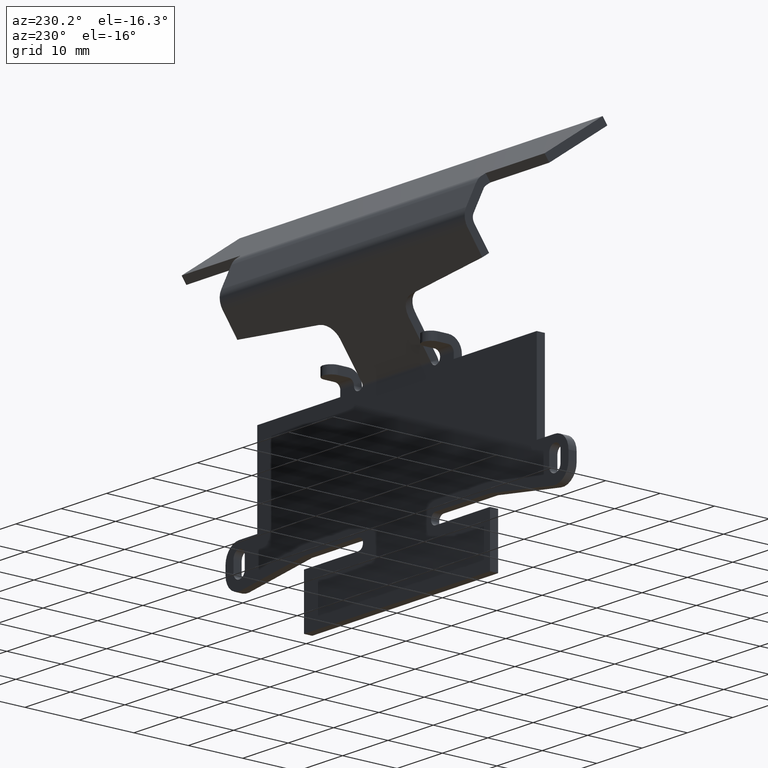
[diagram: clean part render]
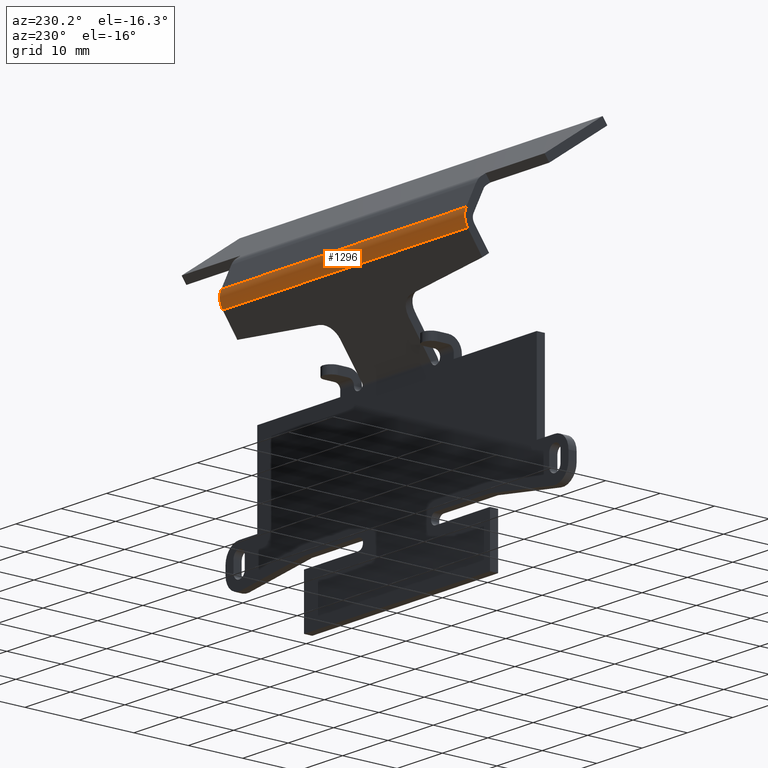
[diagram: same view with one face highlighted and labeled with its STEP entity id]
A machine part, auxiliary view. The second image highlights one B-rep face of the part: STEP entity #1296.
In plain terms, the highlighted cylindrical surface (edge-blend (fillet) strip) has radius 3 mm, axis along (-1, 0, 0).
Its self-contained STEP definition (entity closure, byte-faithful):
#29 = DIRECTION ( 'NONE',  ( -1.000000000000000000, 0.0000000000000000000, 0.0000000000000000000 ) ) ;
#56 = EDGE_LOOP ( 'NONE', ( #2111, #1553, #1340, #2960 ) ) ;
#241 = EDGE_CURVE ( 'NONE', #2071, #917, #930, .T. ) ;
#296 = CARTESIAN_POINT ( 'NONE',  ( -27.00000000000000400, 9.791075290276825900, -22.23260362036016600 ) ) ;
#356 = CIRCLE ( 'NONE', #2920, 3.000000000000001300 ) ;
#612 = CARTESIAN_POINT ( 'NONE',  ( -27.00000000000000700, 9.529608062033847900, -25.22118771463541300 ) ) ;
#673 = VERTEX_POINT ( 'NONE', #1943 ) ;
#679 = EDGE_CURVE ( 'NONE', #917, #2728, #356, .T. ) ;
#850 = DIRECTION ( 'NONE',  ( -1.000000000000000000, 0.0000000000000000000, 0.0000000000000000000 ) ) ;
#917 = VERTEX_POINT ( 'NONE', #296 ) ;
#930 = LINE ( 'NONE', #1348, #1139 ) ;
#976 = DIRECTION ( 'NONE',  ( 0.0000000000000000000, 0.5735764363510469400, 0.8191520442889911300 ) ) ;
#1068 = DIRECTION ( 'NONE',  ( 1.000000000000000000, -0.0000000000000000000, -0.0000000000000000000 ) ) ;
#1081 = LINE ( 'NONE', #1193, #2777 ) ;
#1139 = VECTOR ( 'NONE', #29, 1000.000000000000000 ) ;
#1184 = CARTESIAN_POINT ( 'NONE',  ( 54.07218927023035300, 7.072151929166875700, -23.50045840558227200 ) ) ;
#1193 = CARTESIAN_POINT ( 'NONE',  ( 8.500000000000000000, 9.529608062033847900, -25.22118771463541300 ) ) ;
#1245 = DIRECTION ( 'NONE',  ( 0.0000000000000000000, 0.5735764363510512700, 0.8191520442889881300 ) ) ;
#1296 = ADVANCED_FACE ( 'NONE', ( #2698 ), #1648, .T. ) ;
#1340 = ORIENTED_EDGE ( 'NONE', *, *, #2207, .F. ) ;
#1348 = CARTESIAN_POINT ( 'NONE',  ( 8.500000000000000000, 9.791075290276825900, -22.23260362036016600 ) ) ;
#1382 = CIRCLE ( 'NONE', #2604, 2.999999999999999600 ) ;
#1438 = EDGE_CURVE ( 'NONE', #673, #2728, #1081, .T. ) ;
#1471 = CARTESIAN_POINT ( 'NONE',  ( -26.99999999999994700, 7.072151929166875700, -23.50045840558227200 ) ) ;
#1553 = ORIENTED_EDGE ( 'NONE', *, *, #241, .F. ) ;
#1557 = DIRECTION ( 'NONE',  ( -1.000000000000000000, 0.0000000000000000000, 0.0000000000000000000 ) ) ;
#1648 = CYLINDRICAL_SURFACE ( 'NONE', #2053, 3.000000000000001300 ) ;
#1927 = DIRECTION ( 'NONE',  ( 0.0000000000000000000, 0.5735764363510469400, 0.8191520442889911300 ) ) ;
#1930 = CARTESIAN_POINT ( 'NONE',  ( 27.00000000000000400, 9.791075290276825900, -22.23260362036016600 ) ) ;
#1943 = CARTESIAN_POINT ( 'NONE',  ( 27.00000000000000700, 9.529608062033847900, -25.22118771463541300 ) ) ;
#2053 = AXIS2_PLACEMENT_3D ( 'NONE', #1184, #1557, #976 ) ;
#2071 = VERTEX_POINT ( 'NONE', #1930 ) ;
#2111 = ORIENTED_EDGE ( 'NONE', *, *, #679, .F. ) ;
#2207 = EDGE_CURVE ( 'NONE', #673, #2071, #1382, .T. ) ;
#2589 = DIRECTION ( 'NONE',  ( -1.000000000000000000, 0.0000000000000000000, 0.0000000000000000000 ) ) ;
#2604 = AXIS2_PLACEMENT_3D ( 'NONE', #2634, #1068, #1245 ) ;
#2634 = CARTESIAN_POINT ( 'NONE',  ( 27.00000000000001400, 7.072151929166875700, -23.50045840558227200 ) ) ;
#2698 = FACE_OUTER_BOUND ( 'NONE', #56, .T. ) ;
#2728 = VERTEX_POINT ( 'NONE', #612 ) ;
#2777 = VECTOR ( 'NONE', #2589, 1000.000000000000000 ) ;
#2920 = AXIS2_PLACEMENT_3D ( 'NONE', #1471, #850, #1927 ) ;
#2960 = ORIENTED_EDGE ( 'NONE', *, *, #1438, .T. ) ;